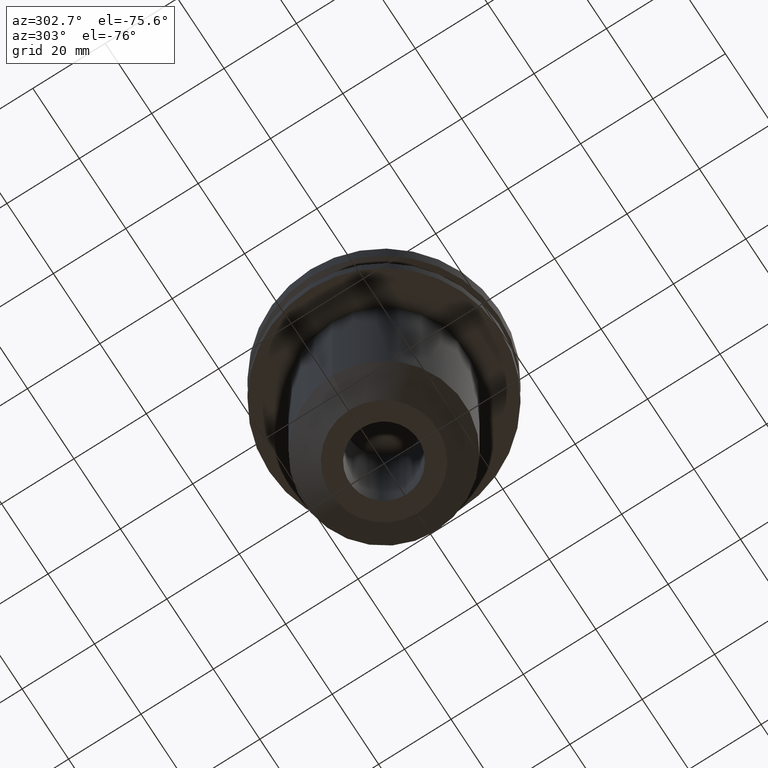
[diagram: clean part render]
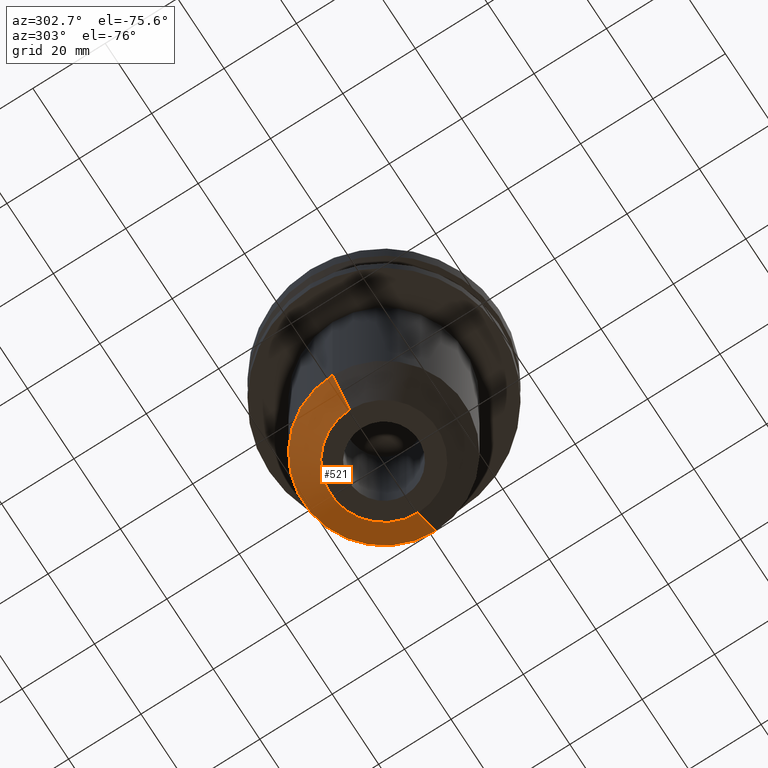
[diagram: same view with one face highlighted and labeled with its STEP entity id]
A machine part, auxiliary view. The second image highlights one B-rep face of the part: STEP entity #521.
In plain terms, the highlighted conical surface has half-angle 45 deg.
Its self-contained STEP definition (entity closure, byte-faithful):
#12 = EDGE_CURVE ( 'NONE', #337, #107, #681, .T. ) ;
#16 = CARTESIAN_POINT ( 'NONE',  ( 14.72499999999998366, 0.000000000000000000, -76.20000000000001705 ) ) ;
#24 = FACE_OUTER_BOUND ( 'NONE', #613, .T. ) ;
#54 = CARTESIAN_POINT ( 'NONE',  ( 14.72499999999998366, 0.000000000000000000, -76.20000000000001705 ) ) ;
#71 = ORIENTED_EDGE ( 'NONE', *, *, #636, .T. ) ;
#86 = CARTESIAN_POINT ( 'NONE',  ( 0.000000000000000000, 0.000000000000000000, -76.20000000000001705 ) ) ;
#107 = VERTEX_POINT ( 'NONE', #739 ) ;
#185 = CARTESIAN_POINT ( 'NONE',  ( 0.000000000000000000, 0.000000000000000000, -76.20000000000001705 ) ) ;
#190 = DIRECTION ( 'NONE',  ( -0.000000000000000000, -0.000000000000000000, 1.000000000000000000 ) ) ;
#207 = DIRECTION ( 'NONE',  ( -0.7071067811865482389, 8.659560562354941486E-17, 0.7071067811865469066 ) ) ;
#216 = CIRCLE ( 'NONE', #749, 14.72499999999998366 ) ;
#272 = CARTESIAN_POINT ( 'NONE',  ( 22.22500000000000142, 0.000000000000000000, -68.70000000000001705 ) ) ;
#321 = DIRECTION ( 'NONE',  ( -0.000000000000000000, -0.000000000000000000, 1.000000000000000000 ) ) ;
#324 = CARTESIAN_POINT ( 'NONE',  ( -14.72499999999998366, 2.262534961424734071E-15, -76.20000000000001705 ) ) ;
#331 = DIRECTION ( 'NONE',  ( 1.000000000000000000, 0.000000000000000000, 0.000000000000000000 ) ) ;
#337 = VERTEX_POINT ( 'NONE', #272 ) ;
#343 = LINE ( 'NONE', #54, #353 ) ;
#353 = VECTOR ( 'NONE', #715, 999.9999999999998863 ) ;
#379 = EDGE_CURVE ( 'NONE', #615, #337, #343, .T. ) ;
#406 = ORIENTED_EDGE ( 'NONE', *, *, #379, .F. ) ;
#422 = ORIENTED_EDGE ( 'NONE', *, *, #12, .F. ) ;
#435 = DIRECTION ( 'NONE',  ( 1.000000000000000000, 0.000000000000000000, 0.000000000000000000 ) ) ;
#451 = CARTESIAN_POINT ( 'NONE',  ( -14.72499999999998366, 1.803292411744475688E-15, -76.20000000000001705 ) ) ;
#461 = VECTOR ( 'NONE', #207, 999.9999999999998863 ) ;
#508 = CARTESIAN_POINT ( 'NONE',  ( 0.000000000000000000, 0.000000000000000000, -68.70000000000001705 ) ) ;
#521 = ADVANCED_FACE ( 'NONE', ( #24 ), #768, .T. ) ;
#593 = AXIS2_PLACEMENT_3D ( 'NONE', #508, #745, #331 ) ;
#602 = ORIENTED_EDGE ( 'NONE', *, *, #656, .T. ) ;
#613 = EDGE_LOOP ( 'NONE', ( #602, #71, #422, #406 ) ) ;
#615 = VERTEX_POINT ( 'NONE', #16 ) ;
#631 = DIRECTION ( 'NONE',  ( 1.000000000000000000, 0.000000000000000000, 0.000000000000000000 ) ) ;
#636 = EDGE_CURVE ( 'NONE', #712, #107, #699, .T. ) ;
#656 = EDGE_CURVE ( 'NONE', #615, #712, #216, .T. ) ;
#681 = CIRCLE ( 'NONE', #593, 22.22500000000000142 ) ;
#697 = AXIS2_PLACEMENT_3D ( 'NONE', #185, #190, #435 ) ;
#699 = LINE ( 'NONE', #451, #461 ) ;
#712 = VERTEX_POINT ( 'NONE', #324 ) ;
#715 = DIRECTION ( 'NONE',  ( 0.7071067811865482389, 0.000000000000000000, 0.7071067811865469066 ) ) ;
#739 = CARTESIAN_POINT ( 'NONE',  ( -22.22500000000000142, 2.721777511104992849E-15, -68.70000000000001705 ) ) ;
#745 = DIRECTION ( 'NONE',  ( -0.000000000000000000, -0.000000000000000000, 1.000000000000000000 ) ) ;
#749 = AXIS2_PLACEMENT_3D ( 'NONE', #86, #321, #631 ) ;
#768 = CONICAL_SURFACE ( 'NONE', #697, 14.72499999999998366, 0.7853981633974491672 ) ;